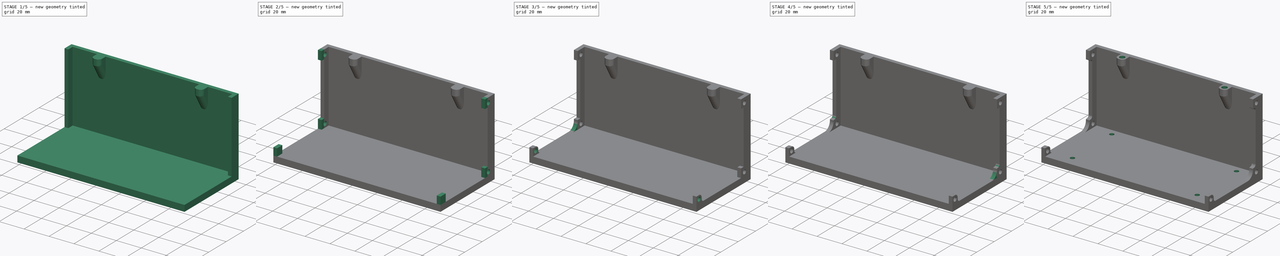
[diagram: build sequence overview — one tinted view per stage of 5, left to right]
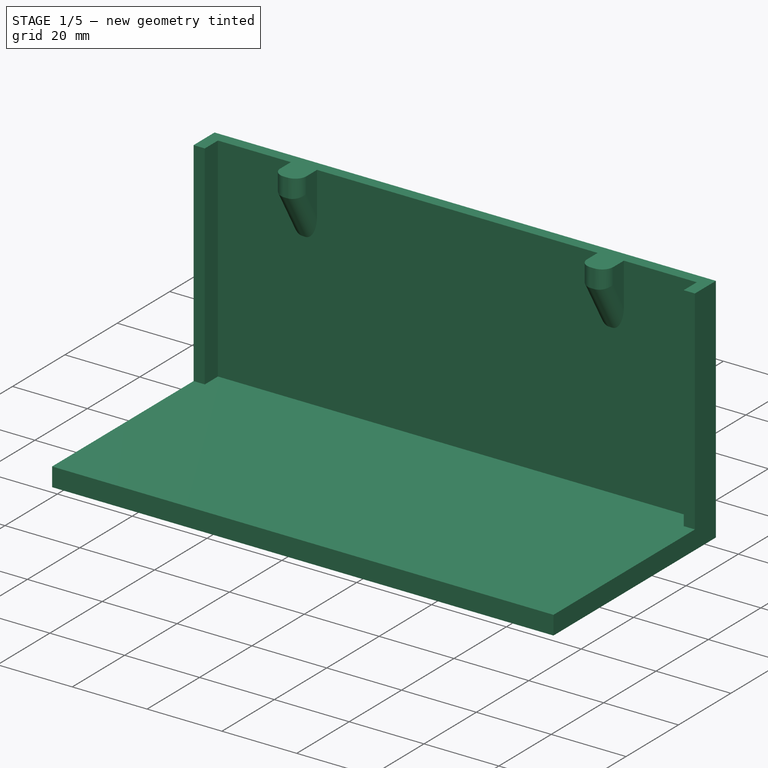
[diagram: stage 1 of 5 — iso view after this stage's code; geometry added in this stage tinted green]
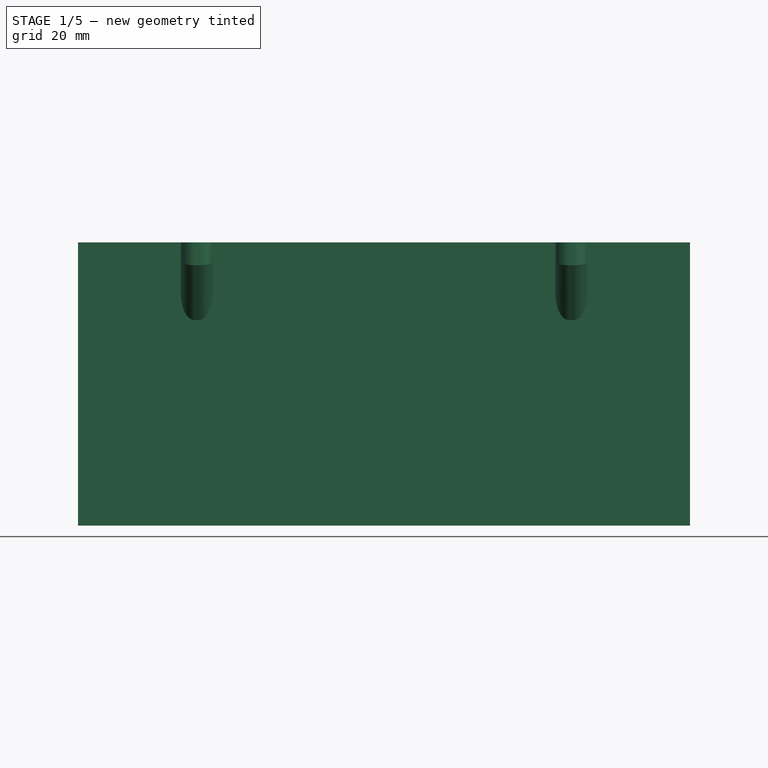
[diagram: stage 1 of 5 — front view after this stage's code; geometry added in this stage tinted green]
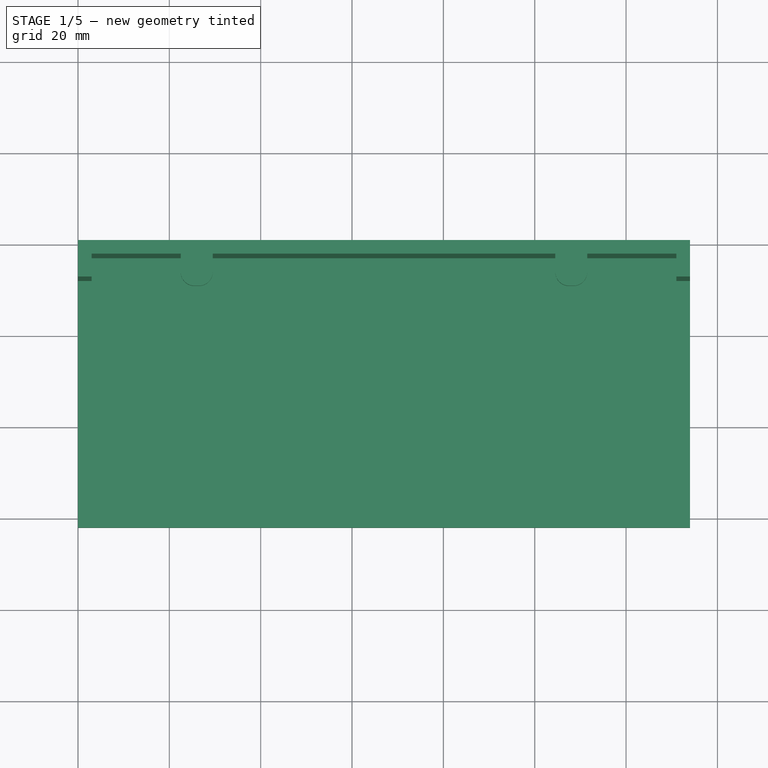
[diagram: stage 1 of 5 — top view after this stage's code; geometry added in this stage tinted green]
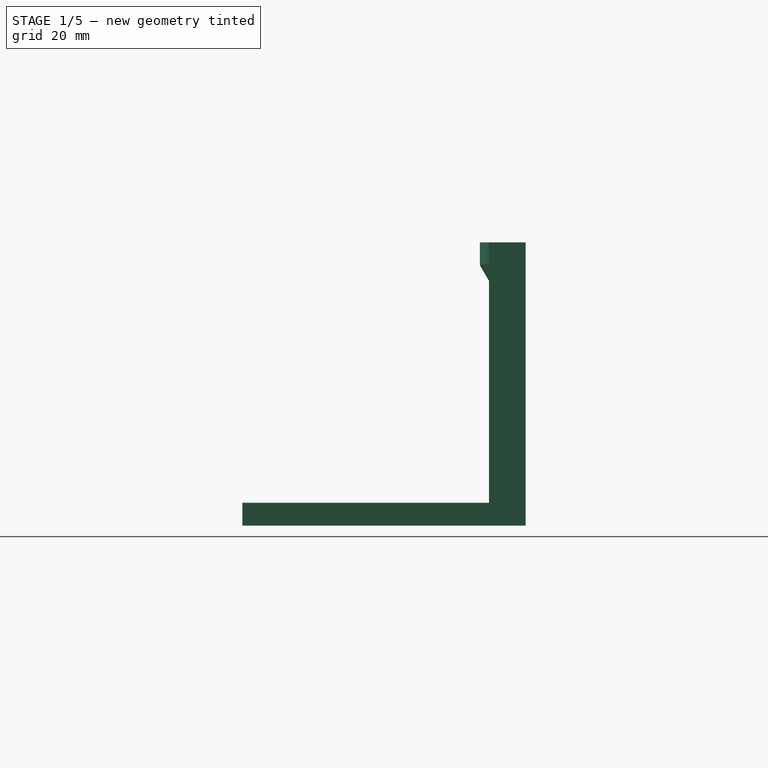
[diagram: stage 1 of 5 — right view after this stage's code; geometry added in this stage tinted green]
FCSTD DOCUMENT  (FreeCAD 0.21R33771 (Git))
Label: middle piece upper frame
License: All rights reserved
LicenseURL: http://en.wikipedia.org/wiki/All_rights_reserved
objects: PartDesign::Fillet×15, Sketcher::SketchObject×13, PartDesign::Pocket×7, PartDesign::Pad×6, PartDesign::Body×1
note: 70 computed .brp shape members not serialized (recipe doc carries the construction recipe); baked Part::Feature solids carry a one-line shape summary decoded from their .brp

FEATURE [Sketcher::SketchObject] Sketch
  FullyConstrained = true
  MapMode = 5
  Support = -> [XY_Plane]
  sketch-geometry (4):
    g0: LineSegment StartX=0 StartY=0 StartZ=0 EndX=134 EndY=0 EndZ=0
    g1: LineSegment StartX=134 StartY=0 StartZ=0 EndX=134 EndY=-62 EndZ=0
    g2: LineSegment StartX=134 StartY=-62 StartZ=0 EndX=0 EndY=-62 EndZ=0
    g3: LineSegment StartX=0 StartY=-62 StartZ=0 EndX=0 EndY=0 EndZ=0
  constraints (11):
    c: Coincident(g0,g1)
    c: Coincident(g1,g2)
    c: Coincident(g2,g3)
    c: Coincident(g3,g0)
    c: Horizontal(g0)
    c: Horizontal(g2)
    c: Vertical(g1)
    c: Vertical(g3)
    c: Coincident(g0,g-1)
    c: DistanceY(g3,g3) = 62
    c: DistanceX(g0,g0) = 134
FEATURE [PartDesign::Pad] Pad
  Direction = (0,0,1)
  Length = 5
  Length2 = 10
  Profile = -> Sketch
  ReferenceAxis = -> Sketch [N_Axis]
  Type = 0
FEATURE [Sketcher::SketchObject] Sketch001
  FullyConstrained = true
  MapMode = 5
  Placement = pos=(0,0,5) rot=(0,0,1;0rad)
  Support = -> [Pad]
  sketch-geometry (4):
    g0: LineSegment StartX=0 StartY=0 StartZ=0 EndX=134 EndY=0 EndZ=0
    g1: LineSegment StartX=134 StartY=0 StartZ=0 EndX=134 EndY=-3 EndZ=0
    g2: LineSegment StartX=134 StartY=-3 StartZ=0 EndX=0 EndY=-3 EndZ=0
    g3: LineSegment StartX=0 StartY=-3 StartZ=0 EndX=0 EndY=0 EndZ=0
  constraints (11):
    c: Coincident(g0,g1)
    c: Coincident(g1,g2)
    c: Coincident(g2,g3)
    c: Coincident(g3,g0)
    c: Horizontal(g0)
    c: Horizontal(g2)
    c: Vertical(g1)
    c: Vertical(g3)
    c: Coincident(g0,g-1)
    c: DistanceX(g0,g0) = 134
    c: DistanceY(g3,g3) = 3
FEATURE [PartDesign::Pad] Pad001
  BaseFeature = -> Pad
  Direction = (0,0,1)
  Length = 57
  Length2 = 10
  Profile = -> Sketch001
  ReferenceAxis = -> Sketch001 [N_Axis]
  Type = 0
FEATURE [Sketcher::SketchObject] Sketch002
  FullyConstrained = true
  MapMode = 5
  Placement = pos=(0,-3,0) rot=(1,0,0;1.5708rad)
  Support = -> [Pad001]
  sketch-geometry (12):
    g0: LineSegment StartX=22.5 StartY=62 StartZ=0 EndX=29.5 EndY=62 EndZ=0
    g1: LineSegment StartX=29.5 StartY=62 StartZ=0 EndX=29.5 EndY=45 EndZ=0
    g2: LineSegment StartX=29.5 StartY=45 StartZ=0 EndX=22.5 EndY=45 EndZ=0
    g3: LineSegment StartX=22.5 StartY=45 StartZ=0 EndX=22.5 EndY=62 EndZ=0
    g4: LineSegment StartX=29.5 StartY=62 StartZ=0 EndX=29.5 EndY=45 EndZ=0
    g5: LineSegment StartX=29.5 StartY=45 StartZ=0 EndX=104.5 EndY=45 EndZ=0
    g6: LineSegment StartX=104.5 StartY=45 StartZ=0 EndX=104.5 EndY=62 EndZ=0
    g7: LineSegment StartX=104.5 StartY=62 StartZ=0 EndX=29.5 EndY=62 EndZ=0
    g8: GeomPoint X=67 Y=53.5 Z=0
    g9: LineSegment StartX=104.5 StartY=45 StartZ=0 EndX=111.5 EndY=45 EndZ=0
    g10: LineSegment StartX=111.5 StartY=62 StartZ=0 EndX=111.5 EndY=45 EndZ=0
    g11: LineSegment StartX=104.5 StartY=62 StartZ=0 EndX=111.5 EndY=62 EndZ=0
  constraints (31):
    c: Coincident(g0,g1)
    c: Coincident(g1,g2)
    c: Coincident(g2,g3)
    c: Coincident(g3,g0)
    c: Horizontal(g0)
    c: Horizontal(g2)
    c: Vertical(g1)
    c: Vertical(g3)
    c: Coincident(g4,g5)
    c: Coincident(g5,g6)
    c: Coincident(g6,g7)
    c: Coincident(g7,g4)
    c: Horizontal(g5)
    c: Horizontal(g7)
    c: Vertical(g6)
    c: Symmetric(g5,g4,g8)
    c: Coincident(g0,g4)
    c: Coincident(g4,g1)
    c: DistanceX(g2,g2) = 7
    c: DistanceY(g1,g1) = 17
    c: DistanceY(g-1,g0) = 62
    c: DistanceX(g-1,g8) = 67
    c: DistanceX(g5,g5) = 75
    c: Coincident(g9,g5)
    c: Horizontal(g9)
    c: Vertical(g10)
    c: Coincident(g11,g6)
    c: Horizontal(g11)
    c: Coincident(g11,g10)
    c: Coincident(g9,g10)
    c: Equal(g9,g2)
FEATURE [PartDesign::Pad] Pad002
  BaseFeature = -> Pad001
  Direction = (0,-1,2e-16)
  Length = 7
  Length2 = 10
  Profile = -> Sketch002
  ReferenceAxis = -> Sketch002 [N_Axis]
  Type = 0
FEATURE [Sketcher::SketchObject] Sketch003
  FullyConstrained = true
  MapMode = 5
  Placement = pos=(22.5,0,0) rot=(0.57735,-0.57735,-0.57735;2.0944rad)
  Support = -> [Pad002]
  sketch-geometry (3):
    g0: LineSegment StartX=3 StartY=45 StartZ=0 EndX=10 EndY=57 EndZ=0
    g1: LineSegment StartX=10 StartY=57 StartZ=0 EndX=10 EndY=45 EndZ=0
    g2: LineSegment StartX=10 StartY=45 StartZ=0 EndX=3 EndY=45 EndZ=0
  constraints (9):
    c: Parallel(g1,g-2)
    c: Coincident(g1,g0)
    c: Horizontal(g2)
    c: Coincident(g2,g1)
    c: Coincident(g2,g0)
    c: DistanceX(g-1,g0) = 3
    c: DistanceY(g-1,g0) = 45
    c: DistanceY(g1,g1) = 12
    c: DistanceX(g2,g2) = 7
FEATURE [PartDesign::Pocket] Pocket
  BaseFeature = -> Pad002
  Direction = (1,0,0)
  Length = 89
  Length2 = 5
  Profile = -> Sketch003
  ReferenceAxis = -> Sketch003 [N_Axis]
  Type = 0
FEATURE [PartDesign::Fillet] Fillet
  Base = -> Pocket [Edge49,Edge48,Edge47,Edge45,Edge41,Edge50,Edge44,Edge42]
  BaseFeature = -> Pocket
  Radius = 3
  SupportTransform = false
  UseAllEdges = false
FEATURE [Sketcher::SketchObject] Sketch004
  FullyConstrained = true
  MapMode = 5
  Placement = pos=(0,-3,0) rot=(1,0,0;1.5708rad)
  Support = -> [Fillet]
  sketch-geometry (8):
    g0: LineSegment StartX=0 StartY=62 StartZ=0 EndX=3 EndY=62 EndZ=0
    g1: LineSegment StartX=3 StartY=62 StartZ=0 EndX=3 EndY=5 EndZ=0
    g2: LineSegment StartX=3 StartY=5 StartZ=0 EndX=0 EndY=5 EndZ=0
    g3: LineSegment StartX=0 StartY=5 StartZ=0 EndX=0 EndY=62 EndZ=0
    g4: LineSegment StartX=134 StartY=62 StartZ=0 EndX=131 EndY=62 EndZ=0
    g5: LineSegment StartX=131 StartY=62 StartZ=0 EndX=131 EndY=5 EndZ=0
    g6: LineSegment StartX=131 StartY=5 StartZ=0 EndX=134 EndY=5 EndZ=0
    g7: LineSegment StartX=134 StartY=5 StartZ=0 EndX=134 EndY=62 EndZ=0
  constraints (24):
    c: Coincident(g0,g1)
    c: Coincident(g1,g2)
    c: Coincident(g2,g3)
    c: Coincident(g3,g0)
    c: Horizontal(g0)
    c: Horizontal(g2)
    c: Vertical(g1)
    c: Vertical(g3)
    c: PointOnObject(g0,g-2)
    c: DistanceY(g-1,g0) = 62
    c: DistanceY(g3,g3) = 57
    c: DistanceX(g0,g0) = 3
    c: Coincident(g4,g5)
    c: Coincident(g5,g6)
    c: Coincident(g6,g7)
    c: Coincident(g7,g4)
    c: Horizontal(g4)
    c: Horizontal(g6)
    c: Vertical(g5)
    c: Vertical(g7)
    c: Equal(g7,g3)
    c: Equal(g4,g0)
    c: DistanceY(g0,g4) = 0
    c: DistanceX(g-1,g4) = 134
FEATURE [PartDesign::Pad] Pad003
  BaseFeature = -> Fillet
  Direction = (0,-1,2e-16)
  Length = 5
  Length2 = 10
  Profile = -> Sketch004
  ReferenceAxis = -> Sketch004 [N_Axis]
  Type = 0
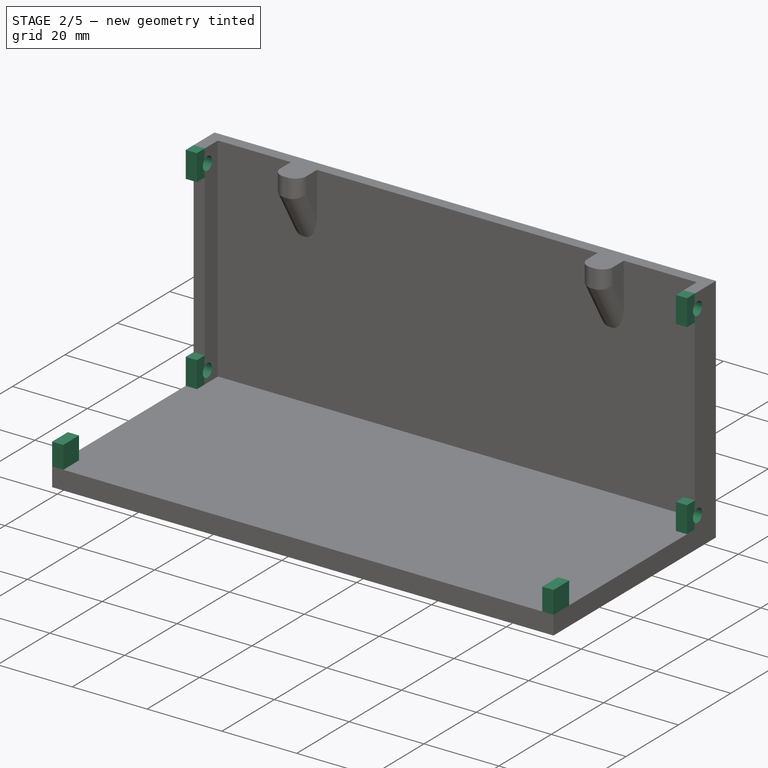
[diagram: stage 2 of 5 — iso view after this stage's code; geometry added in this stage tinted green]
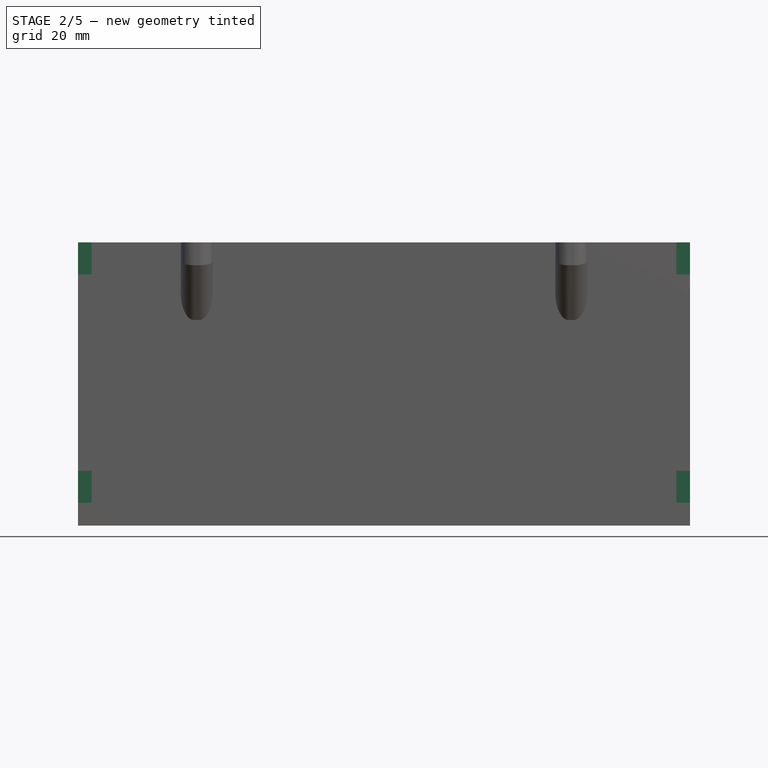
[diagram: stage 2 of 5 — front view after this stage's code; geometry added in this stage tinted green]
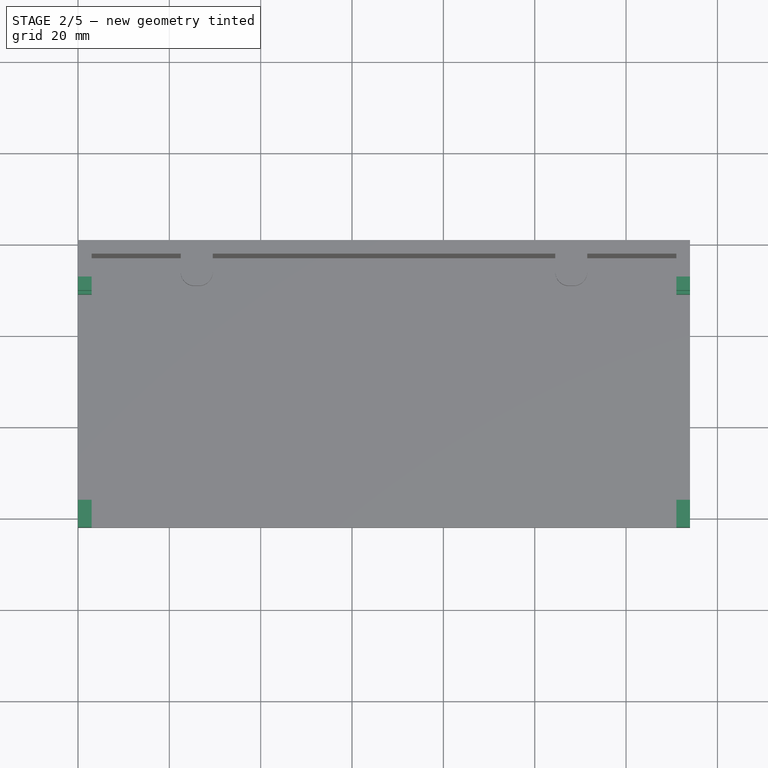
[diagram: stage 2 of 5 — top view after this stage's code; geometry added in this stage tinted green]
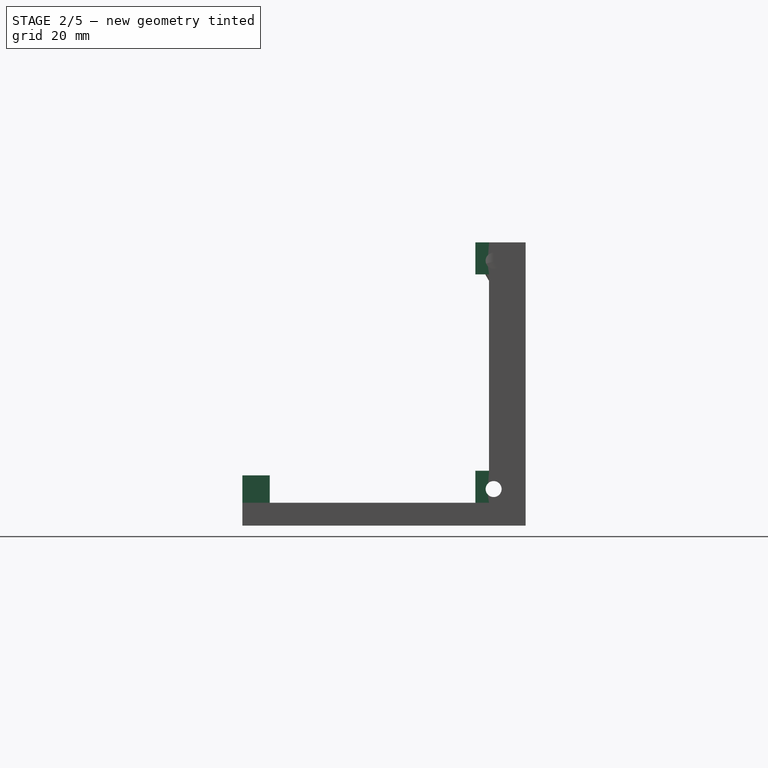
[diagram: stage 2 of 5 — right view after this stage's code; geometry added in this stage tinted green]
FEATURE [Sketcher::SketchObject] Sketch005
  FullyConstrained = true
  MapMode = 5
  Placement = pos=(0,-8,1.8e-15) rot=(1,0,0;1.5708rad)
  Support = -> [Pad003]
  sketch-geometry (16):
    g0: LineSegment StartX=0 StartY=5 StartZ=0 EndX=3 EndY=5 EndZ=0
    g1: LineSegment StartX=3 StartY=5 StartZ=0 EndX=3 EndY=12 EndZ=0
    g2: LineSegment StartX=3 StartY=12 StartZ=0 EndX=0 EndY=12 EndZ=0
    g3: LineSegment StartX=0 StartY=12 StartZ=0 EndX=0 EndY=5 EndZ=0
    g4: LineSegment StartX=0 StartY=62 StartZ=0 EndX=3 EndY=62 EndZ=0
    g5: LineSegment StartX=3 StartY=62 StartZ=0 EndX=3 EndY=55 EndZ=0
    g6: LineSegment StartX=3 StartY=55 StartZ=0 EndX=0 EndY=55 EndZ=0
    g7: LineSegment StartX=0 StartY=55 StartZ=0 EndX=0 EndY=62 EndZ=0
    g8: LineSegment StartX=131 StartY=5 StartZ=0 EndX=134 EndY=5 EndZ=0
    g9: LineSegment StartX=134 StartY=5 StartZ=0 EndX=134 EndY=12 EndZ=0
    g10: LineSegment StartX=134 StartY=12 StartZ=0 EndX=131 EndY=12 EndZ=0
    g11: LineSegment StartX=131 StartY=12 StartZ=0 EndX=131 EndY=5 EndZ=0
    g12: LineSegment StartX=131 StartY=62 StartZ=0 EndX=134 EndY=62 EndZ=0
    g13: LineSegment StartX=134 StartY=62 StartZ=0 EndX=134 EndY=55 EndZ=0
    g14: LineSegment StartX=134 StartY=55 StartZ=0 EndX=131 EndY=55 EndZ=0
    g15: LineSegment StartX=131 StartY=55 StartZ=0 EndX=131 EndY=62 EndZ=0
  constraints (48):
    c: Coincident(g0,g1)
    c: Coincident(g1,g2)
    c: Coincident(g2,g3)
    c: Coincident(g3,g0)
    c: Horizontal(g0)
    c: Horizontal(g2)
    c: Vertical(g1)
    c: Vertical(g3)
    c: PointOnObject(g0,g-2)
    c: DistanceY(g-1,g0) = 5
    c: DistanceX(g2,g2) = 3
    c: Coincident(g4,g5)
    c: Coincident(g5,g6)
    c: Coincident(g6,g7)
    c: Coincident(g7,g4)
    c: Horizontal(g4)
    c: Horizontal(g6)
    c: Vertical(g5)
    c: Vertical(g7)
    c: PointOnObject(g4,g-2)
    c: Equal(g4,g2)
    c: DistanceY(g-1,g4) = 62
    c: Equal(g5,g1)
    c: DistanceY(g1,g1) = 7
    c: Coincident(g8,g9)
    c: Coincident(g9,g10)
    c: Coincident(g10,g11)
    c: Coincident(g11,g8)
    c: Horizontal(g8)
    c: Horizontal(g10)
    c: Vertical(g9)
    c: Vertical(g11)
    c: Coincident(g12,g13)
    c: Coincident(g13,g14)
    c: Coincident(g14,g15)
    c: Coincident(g15,g12)
    c: Horizontal(g12)
    c: Horizontal(g14)
    c: Vertical(g13)
    c: Vertical(g15)
    c: Equal(g10,g2)
    c: Equal(g1,g11)
    c: Equal(g11,g15)
    c: Equal(g14,g10)
    c: DistanceX(g13,g9) = 0
    c: DistanceY(g0,g8) = 0
    c: DistanceY(g12,g4) = 0
    c: DistanceX(g-1,g12) = 134
FEATURE [PartDesign::Pad] Pad004
  BaseFeature = -> Pad003
  Direction = (0,-1,2e-16)
  Length = 3
  Length2 = 10
  Profile = -> Sketch005
  ReferenceAxis = -> Sketch005 [N_Axis]
  Type = 0
FEATURE [Sketcher::SketchObject] Sketch006
  FullyConstrained = true
  MapMode = 5
  Placement = pos=(0,0,0) rot=(0.57735,-0.57735,-0.57735;2.0944rad)
  Support = -> [Pad004]
  sketch-geometry (1):
    g0: Circle CenterX=7 CenterY=8 CenterZ=0 NormalX=0 NormalY=0 NormalZ=1 AngleXU=0 Radius=1.75
  constraints (3):
    c: DistanceX(g-1,g0) = 7
    c: DistanceY(g-1,g0) = 8
    c: Diameter(g0) = 3.5
FEATURE [PartDesign::Pocket] Pocket001
  BaseFeature = -> Pad004
  Direction = (1,0,0)
  Length = 22
  Length2 = 5
  Profile = -> Sketch006
  ReferenceAxis = -> Sketch006 [N_Axis]
  Type = 1
FEATURE [Sketcher::SketchObject] Sketch007
  FullyConstrained = true
  MapMode = 5
  Placement = pos=(0,0,0) rot=(0.57735,-0.57735,-0.57735;2.0944rad)
  Support = -> [Pocket001]
  sketch-geometry (1):
    g0: Circle CenterX=7 CenterY=58 CenterZ=0 NormalX=0 NormalY=0 NormalZ=1 AngleXU=0 Radius=1.75
  constraints (3):
    c: Diameter(g0) = 3.5
    c: DistanceX(g-1,g0) = 7
    c: DistanceY(g-1,g0) = 58
FEATURE [PartDesign::Pocket] Pocket002
  BaseFeature = -> Pocket001
  Direction = (1,0,0)
  Length = 5
  Length2 = 5
  Profile = -> Sketch007
  ReferenceAxis = -> Sketch007 [N_Axis]
  Type = 0
FEATURE [Sketcher::SketchObject] Sketch008
  FullyConstrained = true
  MapMode = 5
  Placement = pos=(134,0,0) rot=(0.57735,0.57735,0.57735;2.0944rad)
  Support = -> [Pocket002]
  sketch-geometry (1):
    g0: Circle CenterX=-7 CenterY=58 CenterZ=0 NormalX=0 NormalY=0 NormalZ=1 AngleXU=0 Radius=1.75
  constraints (3):
    c: Diameter(g0) = 3.5
    c: DistanceX(g0,g-1) = 7
    c: DistanceY(g-1,g0) = 58
FEATURE [PartDesign::Pocket] Pocket003
  BaseFeature = -> Pocket002
  Direction = (-1,0,0)
  Length = 5
  Length2 = 5
  Profile = -> Sketch008
  ReferenceAxis = -> Sketch008 [N_Axis]
  Type = 0
FEATURE [Sketcher::SketchObject] Sketch009
  FullyConstrained = true
  MapMode = 5
  Placement = pos=(0,0,5) rot=(0,0,1;0rad)
  Support = -> [Pocket003]
  sketch-geometry (8):
    g0: LineSegment StartX=0 StartY=-62 StartZ=0 EndX=3 EndY=-62 EndZ=0
    g1: LineSegment StartX=3 StartY=-62 StartZ=0 EndX=3 EndY=-56 EndZ=0
    g2: LineSegment StartX=3 StartY=-56 StartZ=0 EndX=0 EndY=-56 EndZ=0
    g3: LineSegment StartX=0 StartY=-56 StartZ=0 EndX=0 EndY=-62 EndZ=0
    g4: LineSegment StartX=134 StartY=-62 StartZ=0 EndX=131 EndY=-62 EndZ=0
    g5: LineSegment StartX=131 StartY=-62 StartZ=0 EndX=131 EndY=-56 EndZ=0
    g6: LineSegment StartX=131 StartY=-56 StartZ=0 EndX=134 EndY=-56 EndZ=0
    g7: LineSegment StartX=134 StartY=-56 StartZ=0 EndX=134 EndY=-62 EndZ=0
  constraints (24):
    c: Coincident(g0,g1)
    c: Coincident(g1,g2)
    c: Coincident(g2,g3)
    c: Coincident(g3,g0)
    c: Horizontal(g0)
    c: Horizontal(g2)
    c: Vertical(g1)
    c: Vertical(g3)
    c: PointOnObject(g0,g-2)
    c: DistanceY(g0,g-1) = 62
    c: Coincident(g4,g5)
    c: Coincident(g5,g6)
    c: Coincident(g6,g7)
    c: Coincident(g7,g4)
    c: Horizontal(g4)
    c: Horizontal(g6)
    c: Vertical(g5)
    c: Vertical(g7)
    c: DistanceY(g4,g-1) = 62
    c: DistanceX(g-1,g4) = 134
    c: Equal(g1,g5)
    c: Equal(g4,g0)
    c: DistanceX(g0,g0) = 3
    c: DistanceY(g7,g7) = 6
FEATURE [PartDesign::Pad] Pad005
  BaseFeature = -> Pocket003
  Direction = (0,0,1)
  Length = 6
  Length2 = 10
  Profile = -> Sketch009
  ReferenceAxis = -> Sketch009 [N_Axis]
  Type = 0
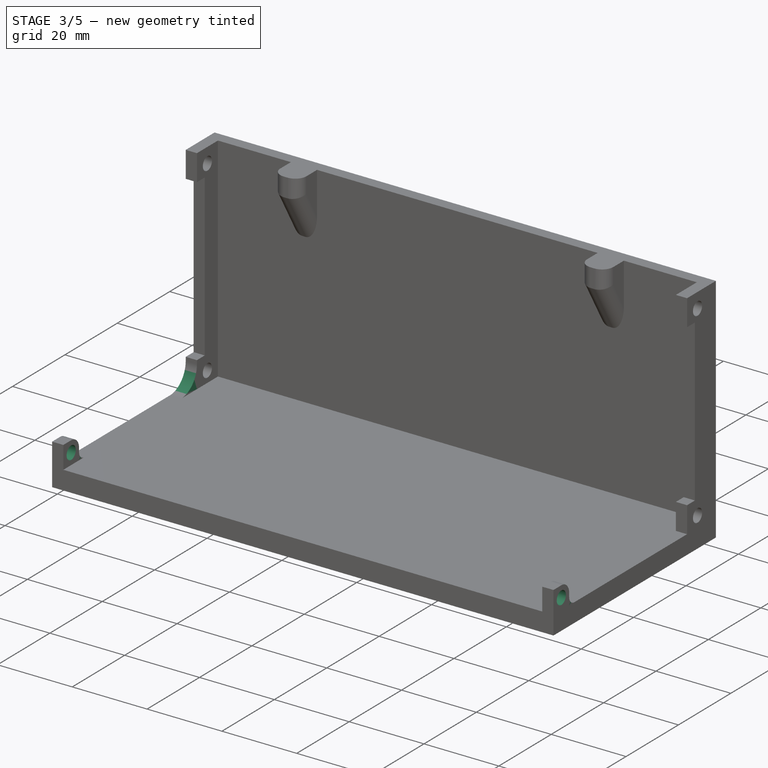
[diagram: stage 3 of 5 — iso view after this stage's code; geometry added in this stage tinted green]
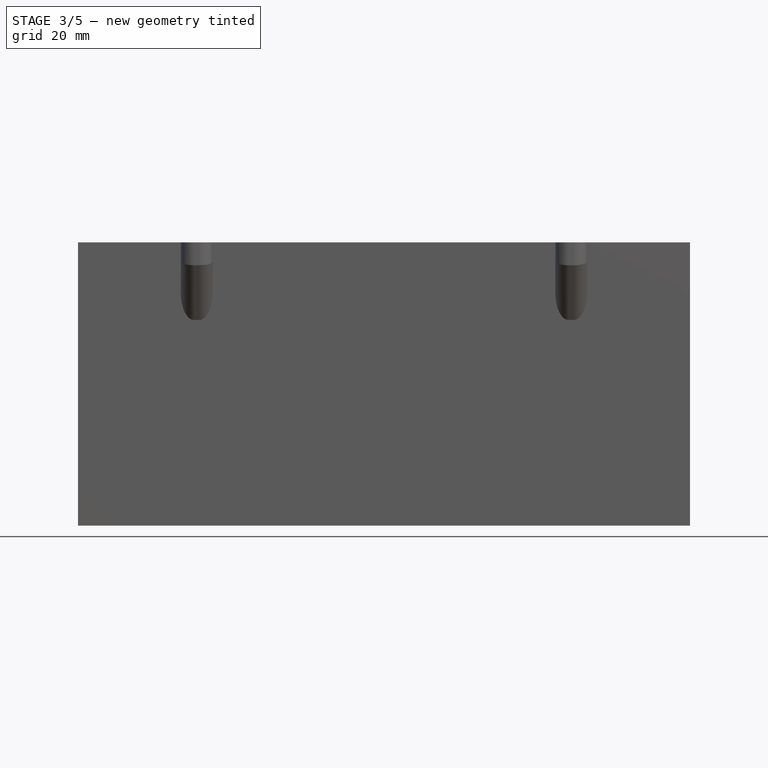
[diagram: stage 3 of 5 — front view after this stage's code; geometry added in this stage tinted green]
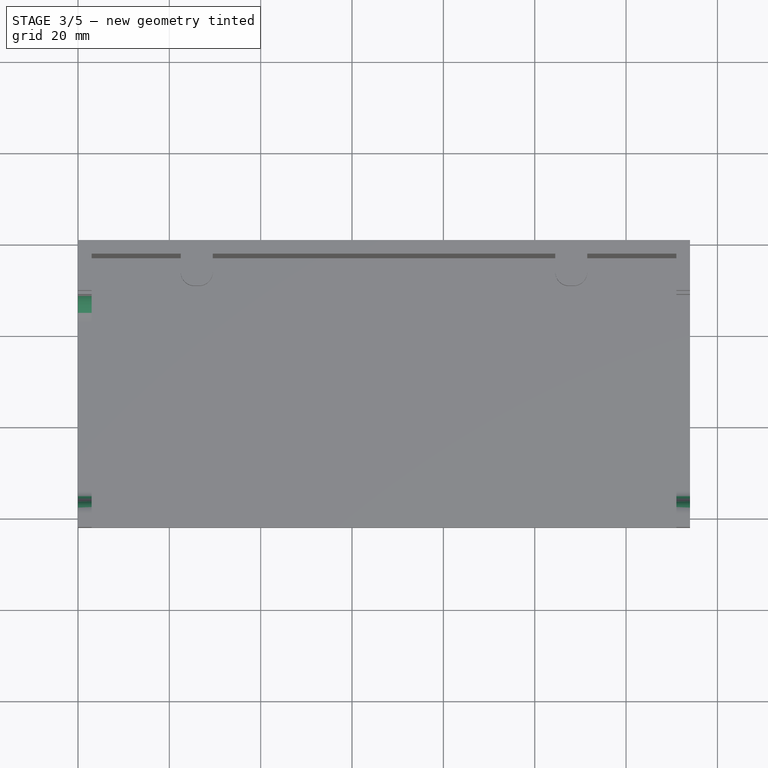
[diagram: stage 3 of 5 — top view after this stage's code; geometry added in this stage tinted green]
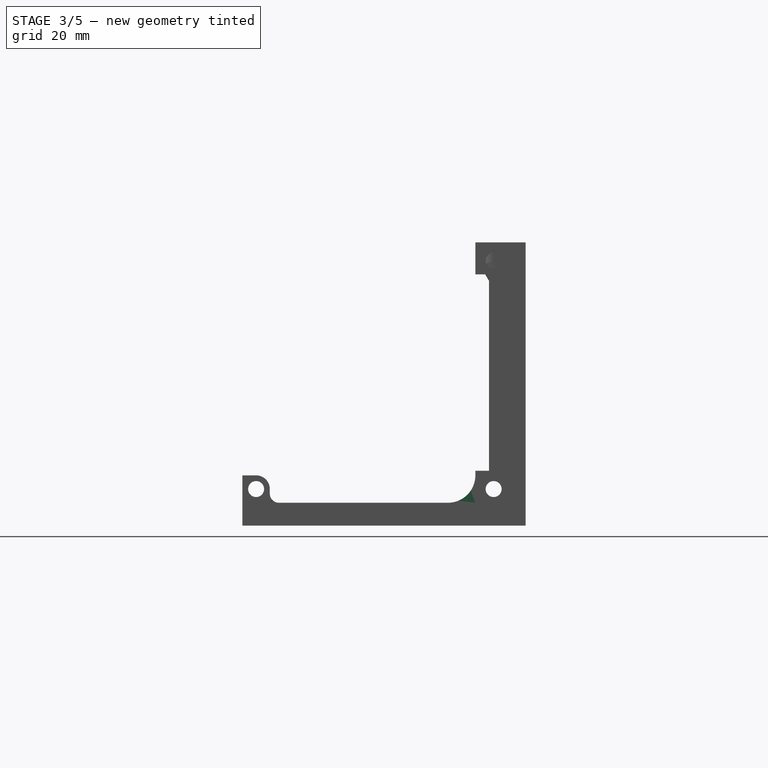
[diagram: stage 3 of 5 — right view after this stage's code; geometry added in this stage tinted green]
FEATURE [Sketcher::SketchObject] Sketch010
  FullyConstrained = true
  MapMode = 5
  Placement = pos=(134,0,0) rot=(0.57735,0.57735,0.57735;2.0944rad)
  Support = -> [Pad005]
  sketch-geometry (2):
    g0: Circle CenterX=-59 CenterY=8 CenterZ=0 NormalX=0 NormalY=0 NormalZ=1 AngleXU=0 Radius=1.75
    g1: GeomPoint X=-62 Y=0 Z=0
  constraints (5):
    c: Diameter(g0) = 3.5
    c: DistanceY(g-1,g0) = 8
    c: PointOnObject(g1,g-1)
    c: DistanceX(g1,g-1) = 62
    c: DistanceX(g1,g0) = 3
FEATURE [PartDesign::Pocket] Pocket004
  BaseFeature = -> Pad005
  Direction = (-1,0,0)
  Length = 5
  Length2 = 5
  Profile = -> Sketch010
  ReferenceAxis = -> Sketch010 [N_Axis]
  Type = 1
FEATURE [PartDesign::Fillet] Fillet001
  Base = -> Pocket004 [Edge129]
  BaseFeature = -> Pocket004
  Radius = 3
  SupportTransform = false
  UseAllEdges = false
FEATURE [PartDesign::Fillet] Fillet002
  Base = -> Fillet001 [Edge3]
  BaseFeature = -> Fillet001
  Radius = 2
  SupportTransform = false
  UseAllEdges = false
FEATURE [PartDesign::Fillet] Fillet003
  Base = -> Fillet002 [Edge86]
  BaseFeature = -> Fillet002
  Radius = 3
  SupportTransform = false
  UseAllEdges = false
FEATURE [PartDesign::Fillet] Fillet004
  Base = -> Fillet003 [Edge14]
  BaseFeature = -> Fillet003
  Radius = 2
  SupportTransform = false
  UseAllEdges = false
FEATURE [PartDesign::Fillet] Fillet005
  Base = -> Fillet004 [Edge17]
  BaseFeature = -> Fillet004
  Radius = 6
  SupportTransform = false
  UseAllEdges = false
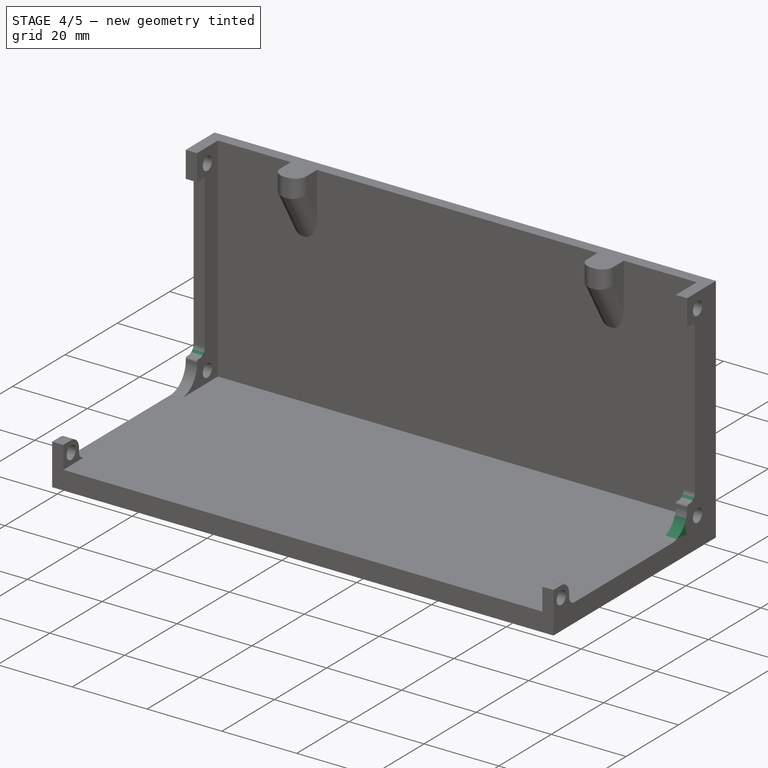
[diagram: stage 4 of 5 — iso view after this stage's code; geometry added in this stage tinted green]
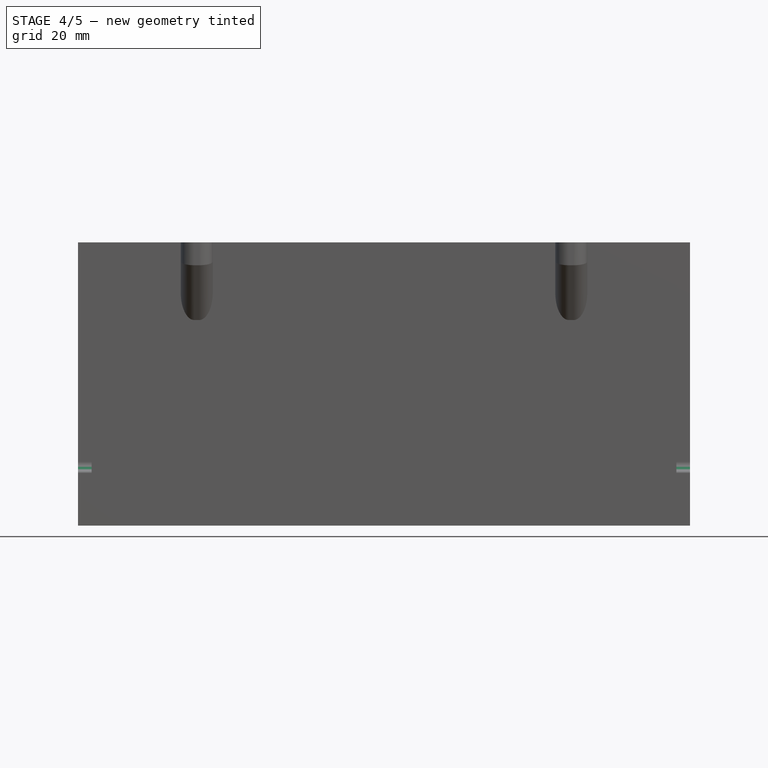
[diagram: stage 4 of 5 — front view after this stage's code; geometry added in this stage tinted green]
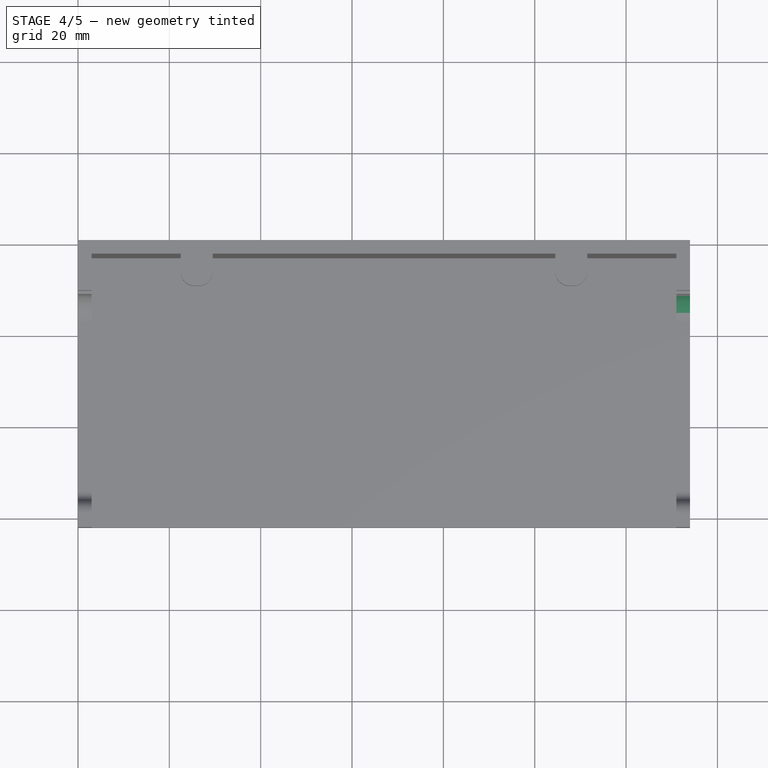
[diagram: stage 4 of 5 — top view after this stage's code; geometry added in this stage tinted green]
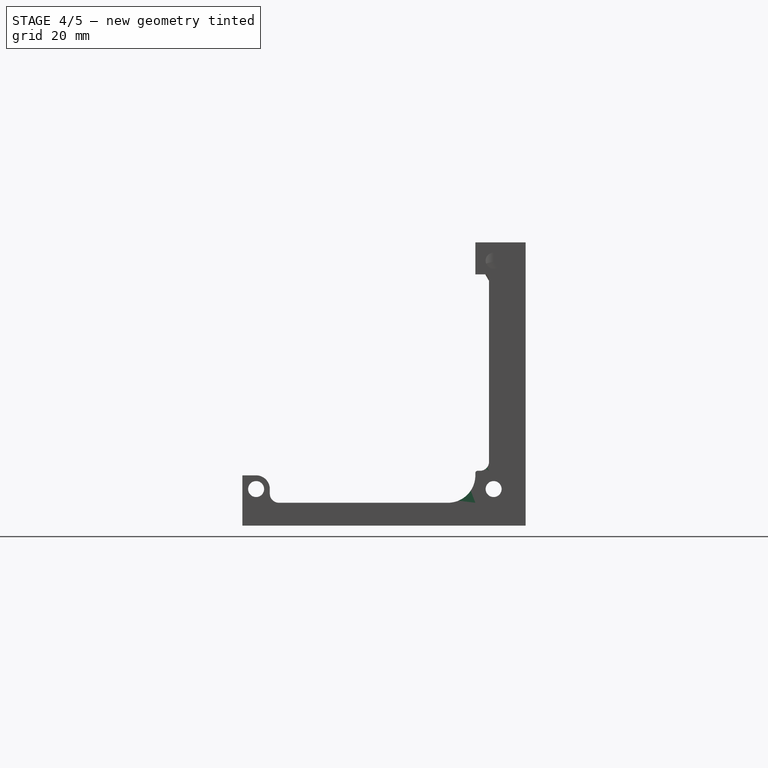
[diagram: stage 4 of 5 — right view after this stage's code; geometry added in this stage tinted green]
FEATURE [PartDesign::Fillet] Fillet006
  Base = -> Fillet005 [Edge16]
  BaseFeature = -> Fillet005
  Radius = 6
  SupportTransform = false
  UseAllEdges = false
FEATURE [PartDesign::Fillet] Fillet007
  Base = -> Fillet006 [Edge177]
  BaseFeature = -> Fillet006
  Radius = 2
  SupportTransform = false
  UseAllEdges = false
FEATURE [PartDesign::Fillet] Fillet008
  Base = -> Fillet007 [Edge77]
  BaseFeature = -> Fillet007
  Radius = 0.5
  SupportTransform = false
  UseAllEdges = false
FEATURE [PartDesign::Fillet] Fillet009
  Base = -> Fillet008 [Edge189]
  BaseFeature = -> Fillet008
  Radius = 2
  SupportTransform = false
  UseAllEdges = false
FEATURE [PartDesign::Fillet] Fillet010
  Base = -> Fillet009 [Edge14]
  BaseFeature = -> Fillet009
  Radius = 0.5
  SupportTransform = false
  UseAllEdges = false
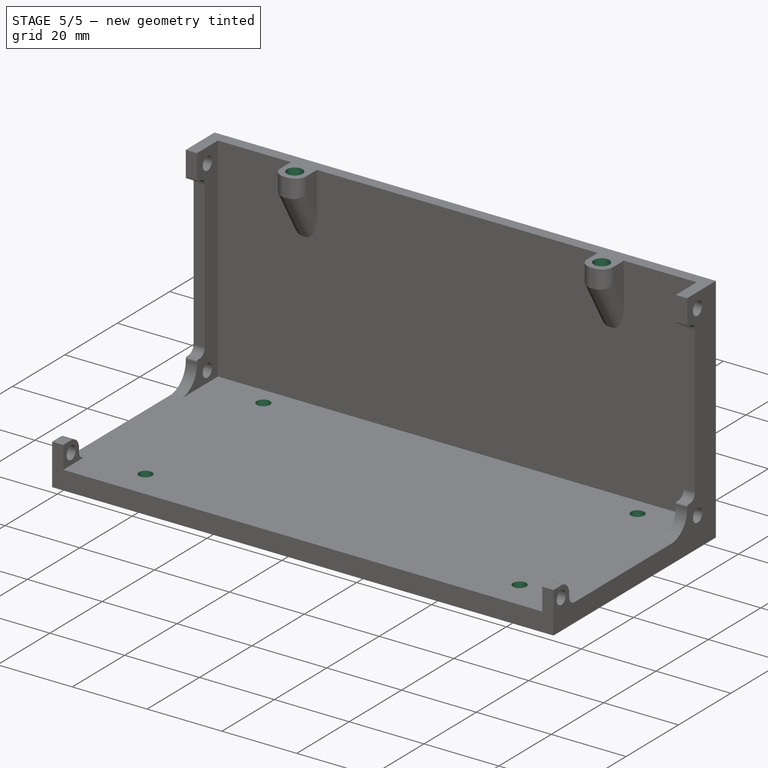
[diagram: stage 5 of 5 — iso view after this stage's code; geometry added in this stage tinted green]
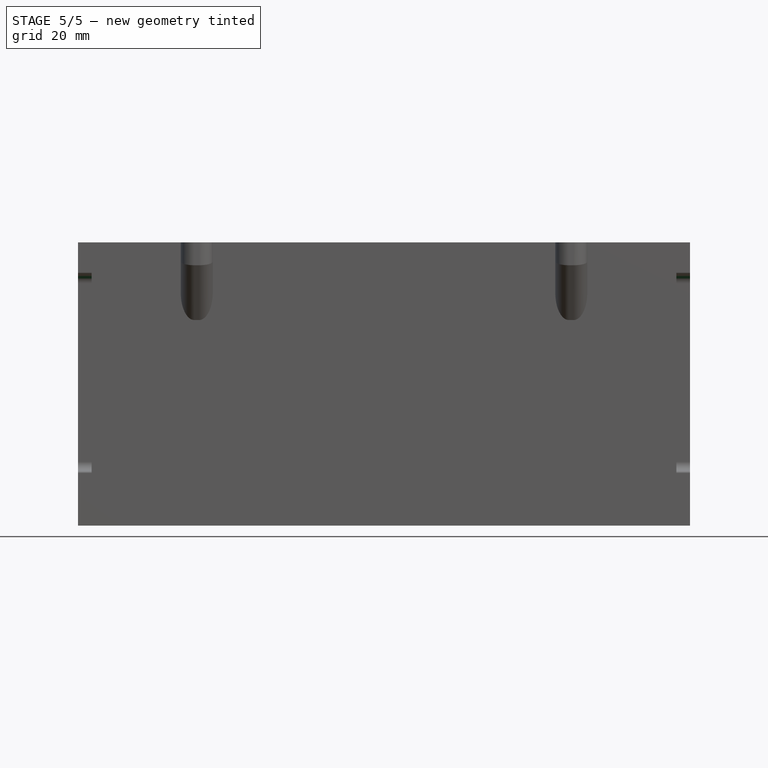
[diagram: stage 5 of 5 — front view after this stage's code; geometry added in this stage tinted green]
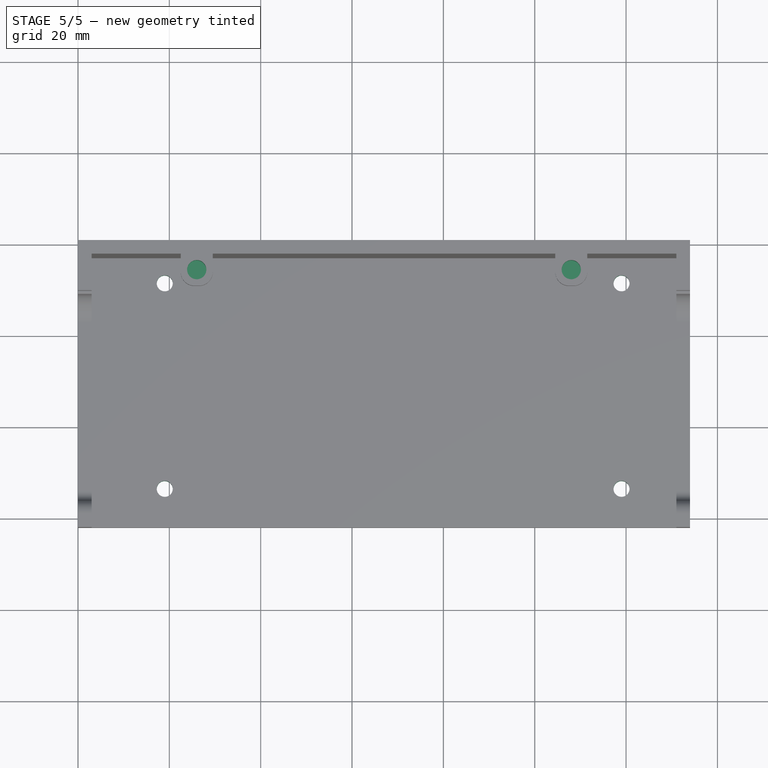
[diagram: stage 5 of 5 — top view after this stage's code; geometry added in this stage tinted green]
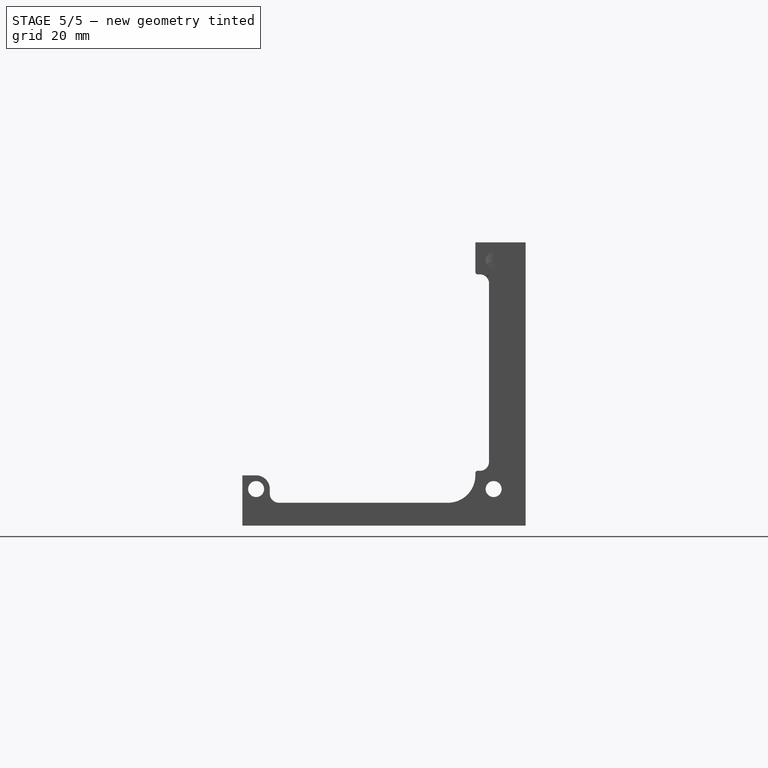
[diagram: stage 5 of 5 — right view after this stage's code; geometry added in this stage tinted green]
FEATURE [PartDesign::Fillet] Fillet011
  Base = -> Fillet010 [Edge190]
  BaseFeature = -> Fillet010
  Radius = 2
  SupportTransform = false
  UseAllEdges = false
FEATURE [PartDesign::Fillet] Fillet012
  Base = -> Fillet011 [Edge81]
  BaseFeature = -> Fillet011
  Radius = 0.5
  SupportTransform = false
  UseAllEdges = false
FEATURE [PartDesign::Fillet] Fillet013
  Base = -> Fillet012 [Edge220]
  BaseFeature = -> Fillet012
  Radius = 2
  SupportTransform = false
  UseAllEdges = false
FEATURE [PartDesign::Fillet] Fillet014
  Base = -> Fillet013 [Edge82]
  BaseFeature = -> Fillet013
  Radius = 0.5
  SupportTransform = false
  UseAllEdges = false
FEATURE [Sketcher::SketchObject] Sketch011
  FullyConstrained = true
  MapMode = 5
  Placement = pos=(0,0,5) rot=(0,0,1;0rad)
  Support = -> [Fillet014]
  sketch-geometry (9):
    g0: LineSegment StartX=19 StartY=-53.5 StartZ=0 EndX=19 EndY=-8.5 EndZ=0
    g1: LineSegment StartX=19 StartY=-8.5 StartZ=0 EndX=119 EndY=-8.5 EndZ=0
    g2: LineSegment StartX=119 StartY=-8.5 StartZ=0 EndX=119 EndY=-53.5 EndZ=0
    g3: LineSegment StartX=119 StartY=-53.5 StartZ=0 EndX=19 EndY=-53.5 EndZ=0
    g4: GeomPoint X=69 Y=-31 Z=0
    g5: Circle CenterX=19 CenterY=-8.5 CenterZ=0 NormalX=0 NormalY=0 NormalZ=1 AngleXU=0 Radius=1.75
    g6: Circle CenterX=19 CenterY=-53.5 CenterZ=0 NormalX=0 NormalY=0 NormalZ=1 AngleXU=0 Radius=1.75
    g7: Circle CenterX=119 CenterY=-53.5 CenterZ=0 NormalX=0 NormalY=0 NormalZ=1 AngleXU=0 Radius=1.75
    g8: Circle CenterX=119 CenterY=-8.5 CenterZ=0 NormalX=0 NormalY=0 NormalZ=1 AngleXU=0 Radius=1.75
  constraints (21):
    c: Coincident(g0,g1)
    c: Coincident(g1,g2)
    c: Coincident(g2,g3)
    c: Coincident(g3,g0)
    c: Horizontal(g1)
    c: Horizontal(g3)
    c: Vertical(g0)
    c: Vertical(g2)
    c: Symmetric(g1,g0,g4)
    c: DistanceX(g-1,g4) = 69
    c: DistanceY(g4,g-1) = 31
    c: Coincident(g5,g0)
    c: Coincident(g6,g0)
    c: Coincident(g7,g2)
    c: Coincident(g8,g1)
    c: Equal(g8,g7)
    c: Equal(g8,g6)
    c: Equal(g8,g5)
    c: Diameter(g8) = 3.5
    c: DistanceY(g2,g2) = 45
    c: DistanceX(g3,g3) = 100
FEATURE [PartDesign::Pocket] Pocket005
  BaseFeature = -> Fillet014
  Direction = (0,0,-1)
  Length = 5
  Length2 = 5
  Profile = -> Sketch011
  ReferenceAxis = -> Sketch011 [N_Axis]
  Type = 0
FEATURE [Sketcher::SketchObject] Sketch012
  FullyConstrained = true
  MapMode = 5
  Placement = pos=(0,1.38e-14,62) rot=(0,0,1;0rad)
  Support = -> [Pocket005]
  sketch-geometry (4):
    g0: LineSegment StartX=26 StartY=-6.5 StartZ=0 EndX=108 EndY=-6.5 EndZ=0
    g1: GeomPoint X=67 Y=-6.5 Z=0
    g2: Circle CenterX=26 CenterY=-6.5 CenterZ=0 NormalX=0 NormalY=0 NormalZ=1 AngleXU=0 Radius=2.1
    g3: Circle CenterX=108 CenterY=-6.5 CenterZ=0 NormalX=0 NormalY=0 NormalZ=1 AngleXU=0 Radius=2.1
  constraints (10):
    c: Horizontal(g0)
    c: DistanceX(g0,g0) = 82
    c: DistanceY(g0,g-1) = 6.5
    c: PointOnObject(g1,g0)
    c: DistanceX(g0,g1) = 41
    c: DistanceX(g-1,g1) = 67
    c: Coincident(g2,g0)
    c: Coincident(g3,g0)
    c: Equal(g3,g2)
    c: Diameter(g3) = 4.2
FEATURE [PartDesign::Pocket] Pocket006
  BaseFeature = -> Pocket005
  Direction = (0,-2e-16,-1)
  Length = 5
  Length2 = 5
  Profile = -> Sketch012
  ReferenceAxis = -> Sketch012 [N_Axis]
  Type = 0
FEATURE [PartDesign::Body] Body
  Group = -> [Sketch,Pad,Sketch001,Pad001,Sketch002,Pad002,Sketch003,Pocket,Fillet,Sketch004,Pad003,Sketch005,Pad004,Sketch006,Pocket001,Sketch007,Pocket002,Sketch008,Pocket003,Sketch009,Pad005,Sketch010,Pocket004,Fillet001,Fillet002,Fillet003,Fillet004,Fillet005,Fillet006,Fillet007,Fillet008,Fillet009,Fillet010,Fillet011,Fillet012,Fillet013,Fillet014,Sketch011,Pocket005,Sketch012,Pocket006]
  Origin = -> Origin
  Tip = -> Pocket006
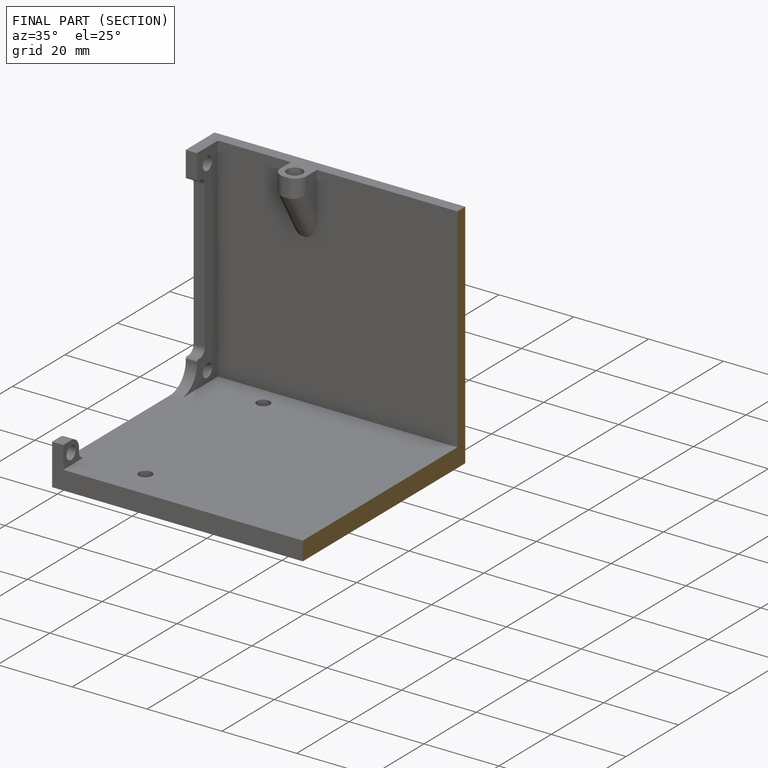
[diagram: finished part — half-section view (interior)]
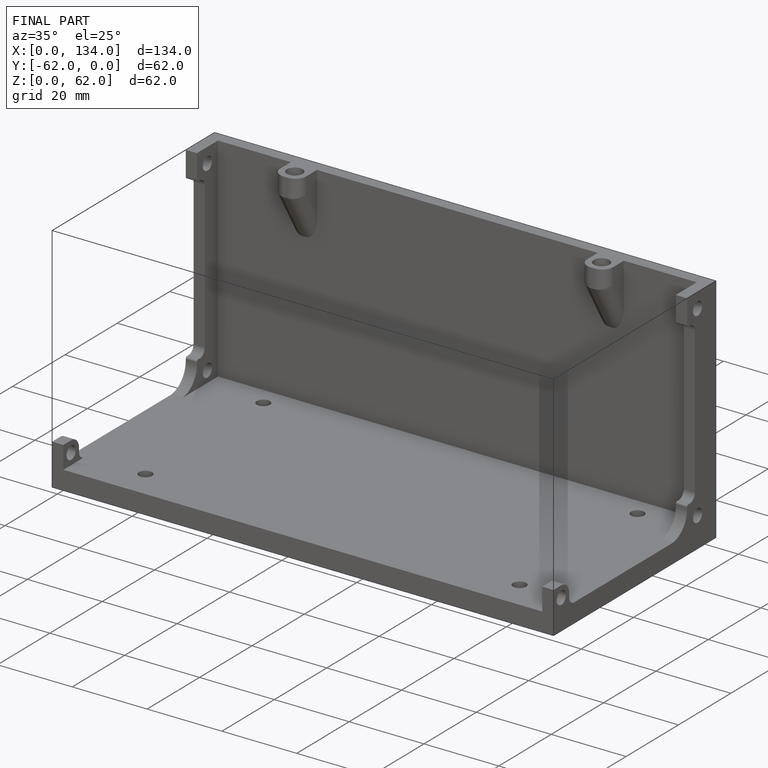
[diagram: finished part — iso view with bounding-box wireframe]
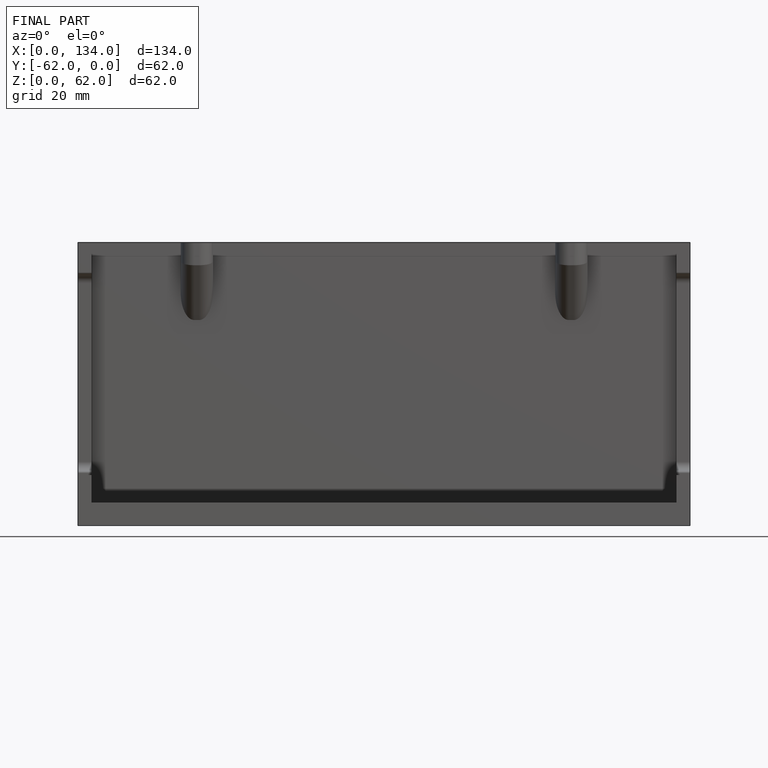
[diagram: finished part — front view with bounding-box wireframe]
